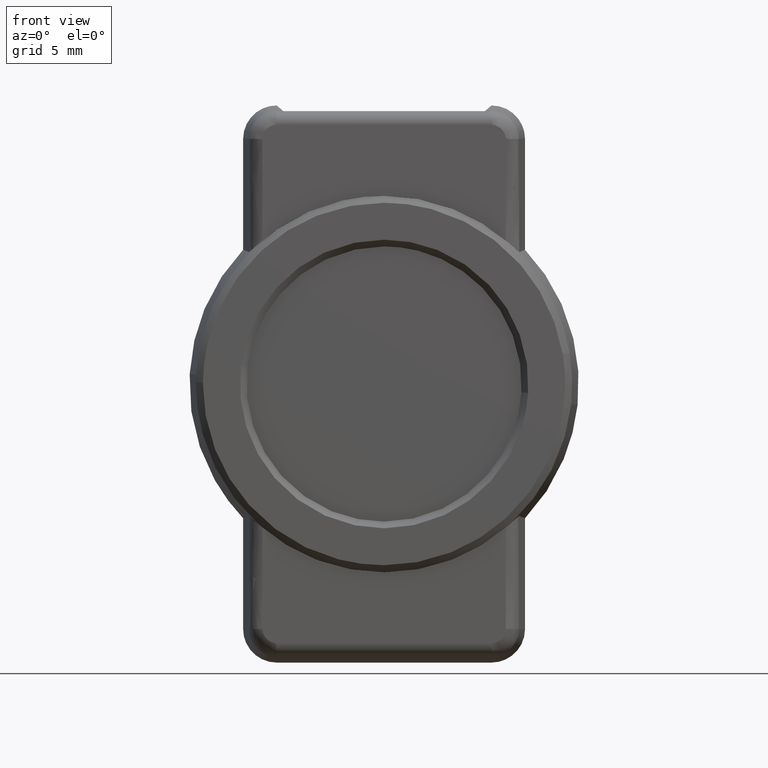
[diagram: clean part render]
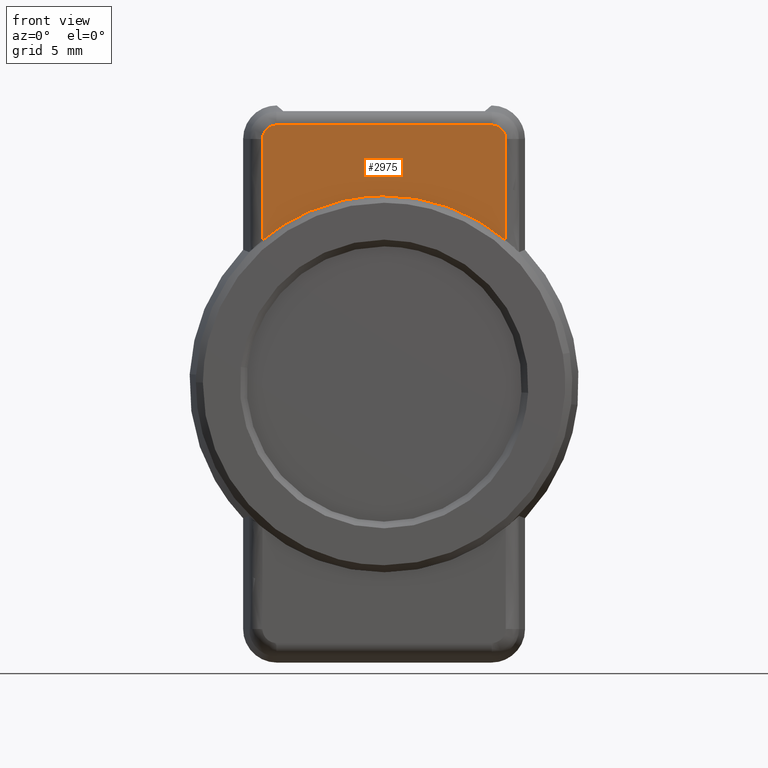
[diagram: same view with one face highlighted and labeled with its STEP entity id]
A machine part, front view. The second image highlights one B-rep face of the part: STEP entity #2975.
In plain terms, the highlighted face is a freeform B-spline surface patch.
Its self-contained STEP definition (entity closure, byte-faithful):
#672=CARTESIAN_POINT('',(11.499999999999821,9.058798513189231,10.700127430860100));
#673=VERTEX_POINT('',#672);
#701=CARTESIAN_POINT('',(11.499999999999821,-9.059798688838379,10.699280595298299));
#702=VERTEX_POINT('',#701);
#703=CARTESIAN_POINT('',(11.499999999999821,9.058798513189235,10.700127430860100));
#704=CARTESIAN_POINT('',(11.499999999999822,-0.000858590088321,18.370092936175400));
#705=CARTESIAN_POINT('',(11.499999999999821,-9.059798688838370,10.699280595298299));
#713=(BOUNDED_CURVE()B_SPLINE_CURVE(2,(#703,#704,#705),.UNSPECIFIED.,.F.,.U.)CURVE()GEOMETRIC_REPRESENTATION_ITEM()QUASI_UNIFORM_CURVE()RATIONAL_B_SPLINE_CURVE((1.0,0.763185666517532,1.0))REPRESENTATION_ITEM(''));
#714=EDGE_CURVE('',#673,#702,#713,.T.);
#894=CARTESIAN_POINT('',(11.499999999999821,9.058798513189231,18.250483473910752));
#895=VERTEX_POINT('',#894);
#909=CARTESIAN_POINT('',(11.499999999999821,9.058798513189231,10.700127430860100));
#910=CARTESIAN_POINT('',(11.499999999999821,9.058798513189231,18.250483473910752));
#911=QUASI_UNIFORM_CURVE('',1,(#909,#910),.UNSPECIFIED.,.F.,.U.);
#912=EDGE_CURVE('',#673,#895,#911,.T.);
#1007=CARTESIAN_POINT('',(11.499999999999821,8.018444080745320,19.290837470412150));
#1008=VERTEX_POINT('',#1007);
#1022=CARTESIAN_POINT('',(11.499999999999821,9.058798513189231,18.250483473910752));
#1023=CARTESIAN_POINT('',(11.499999999999821,9.058798513189233,18.319165245017938));
#1024=CARTESIAN_POINT('',(11.499999999999821,9.052039139784005,18.387094917664829));
#1025=CARTESIAN_POINT('',(11.499999999999821,9.031854041252561,18.487871629233361));
#1026=CARTESIAN_POINT('',(11.499999999999829,9.023442293886005,18.521173060093449));
#1027=CARTESIAN_POINT('',(11.499999999999829,9.003581635460806,18.586212036104111));
#1028=CARTESIAN_POINT('',(11.499999999999821,8.980630147073700,18.649978475441639));
#1029=CARTESIAN_POINT('',(11.499999999999810,8.951583732700559,18.711235550973011));
#1030=CARTESIAN_POINT('',(11.499999999999810,8.919444629224872,18.771219324397769));
#1031=CARTESIAN_POINT('',(11.499999999999821,8.901717314454197,18.800731566250061));
#1032=CARTESIAN_POINT('',(11.499999999999821,8.844643107517214,18.885905895952121));
#1033=CARTESIAN_POINT('',(11.499999999999821,8.801573053656824,18.938213802929599));
#1034=CARTESIAN_POINT('',(11.499999999999810,8.729615030865196,19.010121789577919));
#1035=CARTESIAN_POINT('',(11.499999999999829,8.704394746418734,19.032990974501288));
#1036=CARTESIAN_POINT('',(11.499999999999829,8.651406230282085,19.076458290839408));
#1037=CARTESIAN_POINT('',(11.499999999999821,8.623867164725199,19.096852064840959));
#1038=CARTESIAN_POINT('',(11.499999999999821,8.539109133018227,19.153439110961511));
#1039=CARTESIAN_POINT('',(11.499999999999810,8.479402505680302,19.185386440900221));
#1040=CARTESIAN_POINT('',(11.499999999999810,8.384992349567192,19.224554206649540));
#1041=CARTESIAN_POINT('',(11.499999999999829,8.352537020428473,19.236181825830659));
#1042=CARTESIAN_POINT('',(11.499999999999829,8.287233318997963,19.255996466588051));
#1043=CARTESIAN_POINT('',(11.499999999999821,8.254297564620149,19.264238935152520));
#1044=CARTESIAN_POINT('',(11.499999999999821,8.154656853910668,19.284078884669650));
#1045=CARTESIAN_POINT('',(11.499999999999821,8.087126731001916,19.290837470412111));
#1046=CARTESIAN_POINT('',(11.499999999999821,8.018444080745320,19.290837470412150));
#1047=B_SPLINE_CURVE_WITH_KNOTS('',3,(#1022,#1023,#1024,#1025,#1026,#1027,#1028,#1029,#1030,#1031,#1032,#1033,#1034,#1035,#1036,#1037,#1038,#1039,#1040,#1041,#1042,#1043,#1044,#1045,#1046),.UNSPECIFIED.,.F.,.U.,(4,2,2,1,2,2,2,2,2,2,2,2,4),(0.0,0.125000000000000,0.187499999999999,0.249999999999999,0.312499999999998,0.374999999999998,0.500000000000000,0.562500000000003,0.625000000000005,0.750000000000004,0.812500000000003,0.875000000000002,1.0),.UNSPECIFIED.);
#1048=EDGE_CURVE('',#895,#1008,#1047,.T.);
#1109=CARTESIAN_POINT('',(11.499999999999821,-8.019435775776319,19.290837470412150));
#1110=VERTEX_POINT('',#1109);
#1124=CARTESIAN_POINT('',(11.499999999999821,8.018444080745320,19.290837470412150));
#1125=CARTESIAN_POINT('',(11.499999999999821,-8.019435775776319,19.290837470412150));
#1126=QUASI_UNIFORM_CURVE('',1,(#1124,#1125),.UNSPECIFIED.,.F.,.U.);
#1127=EDGE_CURVE('',#1008,#1110,#1126,.T.);
#1228=CARTESIAN_POINT('',(11.499999999999821,-9.059798688838379,18.250475106497301));
#1229=VERTEX_POINT('',#1228);
#1243=CARTESIAN_POINT('',(11.499999999999821,-8.019435775776319,19.290837470412150));
#1244=CARTESIAN_POINT('',(11.499999999999821,-8.088118101139772,19.290837470412150));
#1245=CARTESIAN_POINT('',(11.499999999999821,-8.156048320291257,19.284078052346349));
#1246=CARTESIAN_POINT('',(11.499999999999821,-8.256825840241168,19.263892821754190));
#1247=CARTESIAN_POINT('',(11.499999999999821,-8.290127551494841,19.255481016169391));
#1248=CARTESIAN_POINT('',(11.499999999999821,-8.355167068496227,19.235620220687458));
#1249=CARTESIAN_POINT('',(11.499999999999821,-8.418934037484865,19.212668573584939));
#1250=CARTESIAN_POINT('',(11.499999999999821,-8.480191620652535,19.183621958627601));
#1251=CARTESIAN_POINT('',(11.499999999999821,-8.540175890759963,19.151482633850019));
#1252=CARTESIAN_POINT('',(11.499999999999821,-8.569688376107798,19.133755198280060));
#1253=CARTESIAN_POINT('',(11.499999999999821,-8.654863445531285,19.076680575850869));
#1254=CARTESIAN_POINT('',(11.499999999999821,-8.707171807833243,19.033610206443530));
#1255=CARTESIAN_POINT('',(11.499999999999821,-8.779080423031475,18.961651654943800));
#1256=CARTESIAN_POINT('',(11.499999999999821,-8.801949808332902,18.936431184963020));
#1257=CARTESIAN_POINT('',(11.499999999999829,-8.845417506733917,18.883442278755751));
#1258=CARTESIAN_POINT('',(11.499999999999821,-8.865811471535830,18.855902995774368));
#1259=CARTESIAN_POINT('',(11.499999999999821,-8.922399036271314,18.771144308631499));
#1260=CARTESIAN_POINT('',(11.499999999999821,-8.954346661055768,18.711437216935419));
#1261=CARTESIAN_POINT('',(11.499999999999821,-8.993514791274317,18.617026322390750));
#1262=CARTESIAN_POINT('',(11.499999999999829,-9.005142520017188,18.584570737036010));
#1263=CARTESIAN_POINT('',(11.499999999999829,-9.024957349863456,18.519266511952932));
#1264=CARTESIAN_POINT('',(11.499999999999821,-9.033199897327554,18.486330493052272));
#1265=CARTESIAN_POINT('',(11.499999999999829,-9.053040037272449,18.386688980799459));
#1266=CARTESIAN_POINT('',(11.499999999999821,-9.059798688838377,18.319158312992911));
#1267=CARTESIAN_POINT('',(11.499999999999821,-9.059798688838379,18.250475106497301));
#1268=B_SPLINE_CURVE_WITH_KNOTS('',3,(#1243,#1244,#1245,#1246,#1247,#1248,#1249,#1250,#1251,#1252,#1253,#1254,#1255,#1256,#1257,#1258,#1259,#1260,#1261,#1262,#1263,#1264,#1265,#1266,#1267),.UNSPECIFIED.,.F.,.U.,(4,2,2,1,2,2,2,2,2,2,2,2,4),(0.0,0.125000000000001,0.187500000000000,0.249999999999999,0.312499999999998,0.374999999999997,0.499999999999994,0.562499999999996,0.624999999999999,0.750000000000001,0.812500000000003,0.875000000000004,1.0),.UNSPECIFIED.);
#1269=EDGE_CURVE('',#1110,#1229,#1268,.T.);
#1329=CARTESIAN_POINT('',(11.499999999999821,-9.059798688838379,18.250475106497301));
#1330=CARTESIAN_POINT('',(11.499999999999821,-9.059798688838379,10.699280595298299));
#1331=QUASI_UNIFORM_CURVE('',1,(#1329,#1330),.UNSPECIFIED.,.F.,.U.);
#1332=EDGE_CURVE('',#1229,#702,#1331,.T.);
#2962=CARTESIAN_POINT('',(11.499999999999821,9.963822683749651,10.270132476646170));
#2963=CARTESIAN_POINT('',(11.499999999999821,-9.964821725448619,10.270132476646170));
#2964=CARTESIAN_POINT('',(11.499999999999821,9.963822683749651,19.719986587652830));
#2965=CARTESIAN_POINT('',(11.499999999999821,-9.964821725448619,19.719986587652830));
#2966=B_SPLINE_SURFACE_WITH_KNOTS('',1,1,((#2962,#2964),(#2963,#2965)),.UNSPECIFIED.,.F.,.F.,.U.,(2,2),(2,2),(0.0,19.928644409198270),(0.0,9.449854111006662),.UNSPECIFIED.);
#2967=ORIENTED_EDGE('',*,*,#714,.F.);
#2968=ORIENTED_EDGE('',*,*,#912,.T.);
#2969=ORIENTED_EDGE('',*,*,#1048,.T.);
#2970=ORIENTED_EDGE('',*,*,#1127,.T.);
#2971=ORIENTED_EDGE('',*,*,#1269,.T.);
#2972=ORIENTED_EDGE('',*,*,#1332,.T.);
#2973=EDGE_LOOP('',(#2967,#2968,#2969,#2970,#2971,#2972));
#2974=FACE_OUTER_BOUND('',#2973,.T.);
#2975=ADVANCED_FACE('',(#2974),#2966,.F.);